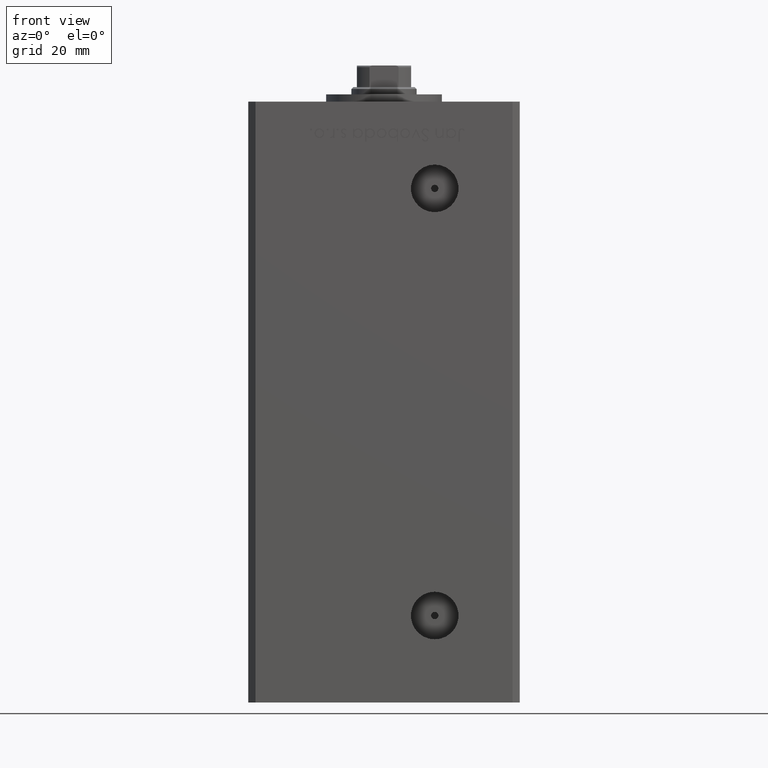
[diagram: clean part render]
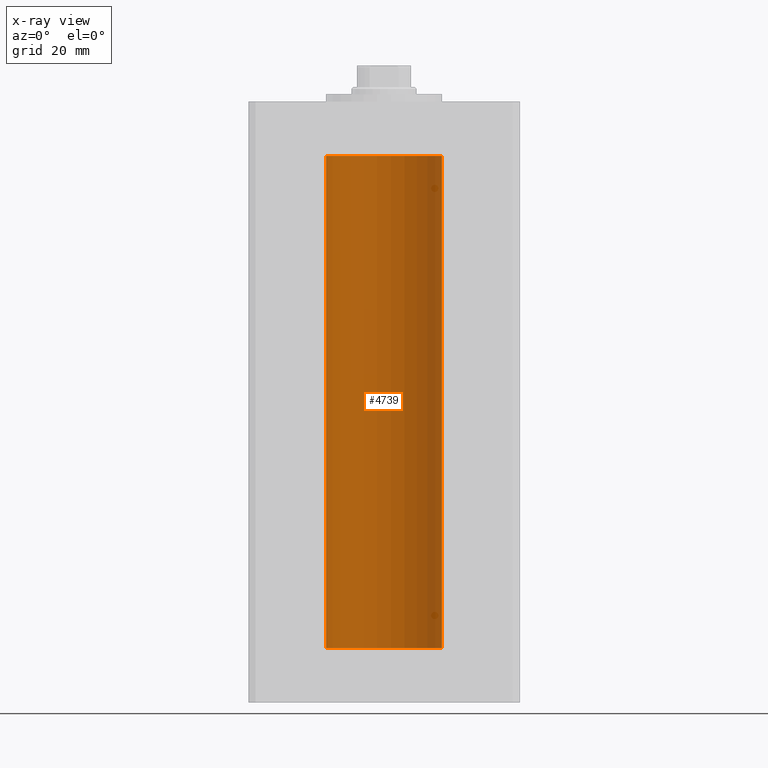
[diagram: x-ray — body ghosted, one internal face saturated and labeled with its STEP entity id]
A machine part, front view, then the same camera in x-ray: the body is ghosted and one INTERNAL B-rep face — a face not visible from any outside direction — is saturated and labeled: STEP entity #4739.
In plain terms, the highlighted cylindrical surface (partial cylindrical patch) has radius 16 mm, axis along (-0, -0, -1).
Its self-contained STEP definition (entity closure, byte-faithful):
#766 = VERTEX_POINT ( 'NONE', #35398 ) ;
#1470 = VERTEX_POINT ( 'NONE', #15982 ) ;
#3089 = DIRECTION ( 'NONE',  ( 1.000000000000000000, 0.000000000000000000, 0.000000000000000000 ) ) ;
#4739 = ADVANCED_FACE ( 'NONE', ( #43733 ), #46673, .F. ) ;
#6217 = DIRECTION ( 'NONE',  ( -0.000000000000000000, -0.000000000000000000, -1.000000000000000000 ) ) ;
#8202 = EDGE_LOOP ( 'NONE', ( #10282, #36883, #13166, #31341 ) ) ;
#8958 = AXIS2_PLACEMENT_3D ( 'NONE', #27117, #23156, #3089 ) ;
#10282 = ORIENTED_EDGE ( 'NONE', *, *, #33388, .F. ) ;
#10504 = CARTESIAN_POINT ( 'NONE',  ( -16.00000000000000000, 0.000000000000000000, 0.000000000000000000 ) ) ;
#11286 = CARTESIAN_POINT ( 'NONE',  ( 0.000000000000000000, 0.000000000000000000, 136.0000000000000000 ) ) ;
#11677 = VECTOR ( 'NONE', #26493, 1000.000000000000000 ) ;
#13166 = ORIENTED_EDGE ( 'NONE', *, *, #45377, .T. ) ;
#14734 = DIRECTION ( 'NONE',  ( -0.000000000000000000, -0.000000000000000000, -1.000000000000000000 ) ) ;
#15982 = CARTESIAN_POINT ( 'NONE',  ( -16.00000000000000000, 0.000000000000000000, 136.0000000000000000 ) ) ;
#21377 = DIRECTION ( 'NONE',  ( -0.000000000000000000, 0.000000000000000000, 1.000000000000000000 ) ) ;
#21635 = CARTESIAN_POINT ( 'NONE',  ( 0.000000000000000000, 0.000000000000000000, 0.000000000000000000 ) ) ;
#22284 = EDGE_CURVE ( 'NONE', #766, #1470, #31729, .T. ) ;
#23156 = DIRECTION ( 'NONE',  ( -0.000000000000000000, 0.000000000000000000, 1.000000000000000000 ) ) ;
#25602 = DIRECTION ( 'NONE',  ( 1.000000000000000000, 0.000000000000000000, 0.000000000000000000 ) ) ;
#26493 = DIRECTION ( 'NONE',  ( -0.000000000000000000, -0.000000000000000000, -1.000000000000000000 ) ) ;
#26883 = DIRECTION ( 'NONE',  ( -1.000000000000000000, 0.000000000000000000, 0.000000000000000000 ) ) ;
#27117 = CARTESIAN_POINT ( 'NONE',  ( 0.000000000000000000, 0.000000000000000000, 136.0000000000000000 ) ) ;
#28003 = CARTESIAN_POINT ( 'NONE',  ( 16.00000000000000000, 1.959434878635765131E-15, 0.000000000000000000 ) ) ;
#28325 = VERTEX_POINT ( 'NONE', #28003 ) ;
#31130 = VECTOR ( 'NONE', #6217, 1000.000000000000000 ) ;
#31341 = ORIENTED_EDGE ( 'NONE', *, *, #39510, .F. ) ;
#31729 = CIRCLE ( 'NONE', #8958, 16.00000000000000000 ) ;
#33388 = EDGE_CURVE ( 'NONE', #766, #28325, #42063, .T. ) ;
#33409 = CARTESIAN_POINT ( 'NONE',  ( -16.00000000000000000, 0.000000000000000000, 136.0000000000000000 ) ) ;
#35398 = CARTESIAN_POINT ( 'NONE',  ( 16.00000000000000000, 1.959434878635765131E-15, 136.0000000000000000 ) ) ;
#36883 = ORIENTED_EDGE ( 'NONE', *, *, #22284, .T. ) ;
#39510 = EDGE_CURVE ( 'NONE', #28325, #40737, #47793, .T. ) ;
#40737 = VERTEX_POINT ( 'NONE', #10504 ) ;
#41792 = CARTESIAN_POINT ( 'NONE',  ( 16.00000000000000000, 1.959434878635765131E-15, 136.0000000000000000 ) ) ;
#42063 = LINE ( 'NONE', #41792, #11677 ) ;
#43158 = AXIS2_PLACEMENT_3D ( 'NONE', #11286, #14734, #26883 ) ;
#43733 = FACE_OUTER_BOUND ( 'NONE', #8202, .T. ) ;
#45377 = EDGE_CURVE ( 'NONE', #1470, #40737, #49225, .T. ) ;
#46673 = CYLINDRICAL_SURFACE ( 'NONE', #43158, 16.00000000000000000 ) ;
#47793 = CIRCLE ( 'NONE', #51984, 16.00000000000000000 ) ;
#49225 = LINE ( 'NONE', #33409, #31130 ) ;
#51984 = AXIS2_PLACEMENT_3D ( 'NONE', #21635, #21377, #25602 ) ;